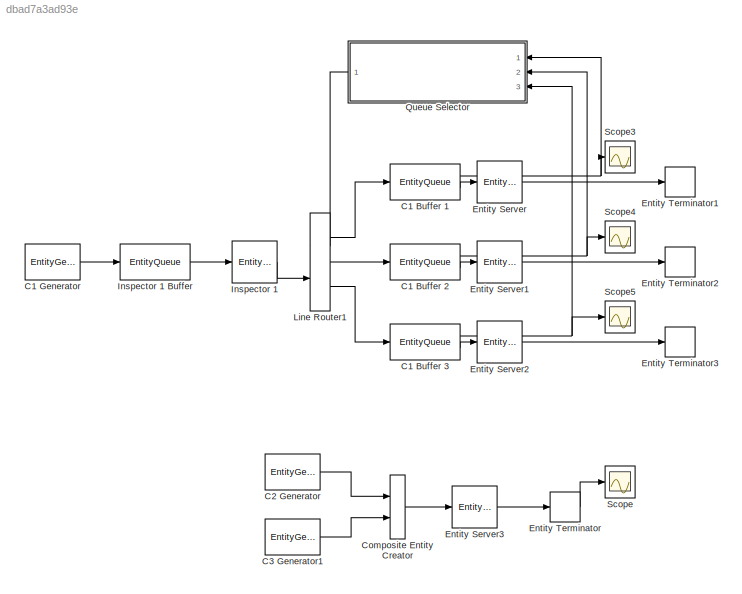
MODEL slx_dbad7a3ad93e
KIND model
CONFIG AbsTol = auto
CONFIG EnableMultiTasking = off
CONFIG FixedStep = auto
CONFIG MaxStep = auto
CONFIG MinStep = auto
CONFIG RelTol = 1e-3
CONFIG SampleTimeConstraint = Unconstrained
CONFIG Solver = VariableStepAuto
CONFIG SolverName = VariableStepAuto
CONFIG StartTime = 0.0
CONFIG StopTime = 11
BLOCK [EntityQueue] C1 Buffer 1
  InputPortMap = u0
  InputPortMessageModes = m
  NumberEntitiesInBlock = on
  OutputPortMap = o1,o5
  OutputPortMessageModes = n,m
  Ports = [1, 2]
BLOCK [EntityQueue] C1 Buffer 2
  InputPortMap = u0
  InputPortMessageModes = m
  NumberEntitiesInBlock = on
  OutputPortMap = o1,o5
  OutputPortMessageModes = n,m
  Ports = [1, 2]
BLOCK [EntityQueue] C1 Buffer 3
  InputPortMap = u0
  InputPortMessageModes = m
  NumberEntitiesInBlock = on
  OutputPortMap = o1,o5
  OutputPortMessageModes = n,m
  Ports = [1, 2]
BLOCK [EntityGenerator] C1 Generator
  AttributeInitialValue = 1|1
  AttributeName = entityType|outputPort
  EntityType = Structured
  EntityTypeName = Entity
  OutputPortMap = o3
  OutputPortMessageModes = m
  Period = 0
  Ports = [0, 1]
BLOCK [EntityGenerator] C2 Generator
  AttributeInitialValue = 2|1
  AttributeName = entityType|outputPort
  EntityType = Structured
  EntityTypeName = Entity
  OutputPortMap = o3
  OutputPortMessageModes = m
  Period = 5
  Ports = [0, 1]
BLOCK [EntityGenerator] C3 Generator1
  AttributeInitialValue = 3|1
  AttributeName = entityType|outputPort
  EntityType = Structured
  EntityTypeName = Entity
  OutputPortMap = o3
  OutputPortMessageModes = m
  Period = 0
  Ports = [0, 1]
BLOCK [CompositeEntityCreator] Composite Entity Creator
  EntityTypeName = Combined
  InputPortMap = u0,u1
  InputPortMessageModes = m,m
  OutputPortMap = o0
  OutputPortMessageModes = m
  Ports = [2, 1]
BLOCK [EntityServer] Entity Server
  Capacity = 1
  InputPortMap = u2
  InputPortMessageModes = m
  OutputPortMap = o9
  OutputPortMessageModes = m
  Ports = [1, 1]
  ServiceTimeValue = 20
BLOCK [EntityServer] Entity Server1
  Capacity = 1
  InputPortMap = u2
  InputPortMessageModes = m
  OutputPortMap = o9
  OutputPortMessageModes = m
  Ports = [1, 1]
  ServiceTimeValue = 20
BLOCK [EntityServer] Entity Server2
  Capacity = 1
  InputPortMap = u2
  InputPortMessageModes = m
  OutputPortMap = o9
  OutputPortMessageModes = m
  Ports = [1, 1]
  ServiceTimeValue = 20
BLOCK [EntityServer] Entity Server3
  Capacity = 1
  InputPortMap = u2
  InputPortMessageModes = m
  OutputPortMap = o9
  OutputPortMessageModes = m
  Ports = [1, 1]
BLOCK [EntityTerminator] Entity Terminator
  InputPortMap = u0
  InputPortMessageModes = m
  NumberEntitiesArrived = on
  OutputPortMap = o0
  Ports = [1, 1]
BLOCK [EntityTerminator] Entity Terminator1
  InputPortMap = u0
  InputPortMessageModes = m
  Ports = [1]
BLOCK [EntityTerminator] Entity Terminator2
  InputPortMap = u0
  InputPortMessageModes = m
  Ports = [1]
BLOCK [EntityTerminator] Entity Terminator3
  InputPortMap = u0
  InputPortMessageModes = m
  Ports = [1]
BLOCK [EntityServer] Inspector 1
  Capacity = 1
  EntryAction = % Entity will select the shortest queue\npickShortestQueue();
  InputPortMap = u2
  InputPortMessageModes = m
  OutputPortMap = o9
  OutputPortMessageModes = m
  Ports = [1, 1]
  ServiceTimeAction = dt = wblrnd(10.725, 1.096);
BLOCK [EntityQueue] Inspector 1 Buffer
  InputPortMap = u0
  InputPortMessageModes = m
  OutputPortMap = o5
  OutputPortMessageModes = m
  Ports = [1, 1]
BLOCK [EntityOutputSwitch] Line Router1
  InputPortMap = u0,u1
  InputPortMessageModes = m,m
  NumberOutputPorts = 3
  OutputPortMap = o0,o1,o2
  OutputPortMessageModes = m,m,m
  Ports = [2, 3]
  SwitchAttributeName = QueuePath
  SwitchingCriterion = From control port
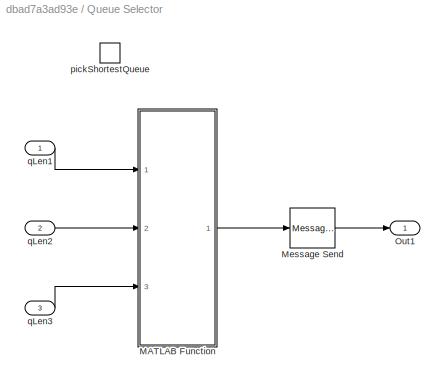
BLOCK [SubSystem] Queue Selector
  Ports = [3, 1, 0, 1]
  RequestExecContextInheritance = off
  TreatAsAtomicUnit = on
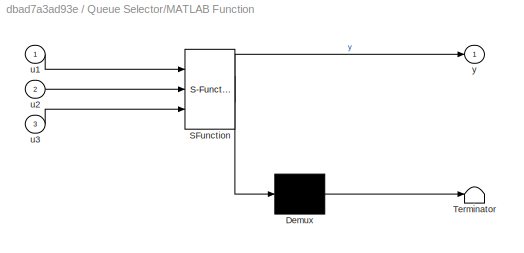
BLOCK [SubSystem] Queue Selector/MATLAB Function
  ErrorFcn = Stateflow.Translate.translate
  PermitHierarchicalResolution = ExplicitOnly
  Ports = [3, 1]
  RequestExecContextInheritance = off
  SFBlockType = MATLAB Function
  TreatAsAtomicUnit = on
BLOCK [Demux] Queue Selector/MATLAB Function/ Demux 
  Outputs = 1
  Ports = [1, 1]
BLOCK [S-Function] Queue Selector/MATLAB Function/ SFunction 
  EnableBusSupport = on
  FunctionName = sf_sfun
  PortCounts = [3 2]
  Ports = [3, 2]
  SFcnIsStateOwnerBlock = off
  SFunctionDeploymentMode = off
  Tag = Stateflow S-Function VnVShortestQueueAndProduct 1
BLOCK [Terminator] Queue Selector/MATLAB Function/ Terminator 
BLOCK [Inport] Queue Selector/MATLAB Function/u1
  IconDisplay = Port number
BLOCK [Inport] Queue Selector/MATLAB Function/u2
  IconDisplay = Port number
  Port = 2
BLOCK [Inport] Queue Selector/MATLAB Function/u3
  IconDisplay = Port number
  Port = 3
BLOCK [Outport] Queue Selector/MATLAB Function/y
  IconDisplay = Port number
BLOCK [MessageSend] Queue Selector/Message Send
  InputPortMap = u1
  OutputPortMessageModes = m
  Ports = [1, 1]
BLOCK [Outport] Queue Selector/Out1
  IconDisplay = Port number
BLOCK [TriggerPort] Queue Selector/pickShortestQueue
  FunctionName = pickShortestQueue
  FunctionVisibility = scoped
  IsSimulinkFunction = on
  Ports = []
  StatesWhenEnabling = held
  TriggerType = function-call
  VariantControl = Variant
BLOCK [Inport] Queue Selector/qLen1
  IconDisplay = Port number
BLOCK [Inport] Queue Selector/qLen2
  IconDisplay = Port number
  Port = 2
BLOCK [Inport] Queue Selector/qLen3
  IconDisplay = Port number
  Port = 3
BLOCK [Scope] Scope
  Floating = off
  NumInputPorts = 1
  Ports = [1]
  ScopeSpecificationString = Simulink.scopes.TimeScopeBlockCfg('CurrentConfiguration', extmgr.ConfigurationSet(extmgr.Configuration('Core','General UI',true),extmgr.Configuration('Core','Source UI',true),extmgr.Configuration('Sources','WiredSimulink',true),extmgr.Configuration('Visuals','Time Domain',true,'SerializedDisplays',{struct('MinYLimReal','0.75','MaxYLimReal','3.25','YLabelReal','','MinYLimMag','0.75','MaxYLimMag','3...<+1311ch>
BLOCK [Scope] Scope3
  Floating = off
  NumInputPorts = 1
  Ports = [1]
  ScopeSpecificationString = Simulink.scopes.TimeScopeBlockCfg('CurrentConfiguration', extmgr.ConfigurationSet(extmgr.Configuration('Core','General UI',true),extmgr.Configuration('Core','Source UI',true),extmgr.Configuration('Sources','WiredSimulink',true,'DataLoggingVariableName','ScopeData3'),extmgr.Configuration('Visuals','Time Domain',true,'SerializedDisplays',{struct('MinYLimReal','-0.375','MaxYLimReal','3.375','YLabelRe...<+1390ch>
BLOCK [Scope] Scope4
  Floating = off
  NumInputPorts = 1
  Ports = [1]
  ScopeSpecificationString = Simulink.scopes.TimeScopeBlockCfg('CurrentConfiguration', extmgr.ConfigurationSet(extmgr.Configuration('Core','General UI',true),extmgr.Configuration('Core','Source UI',true),extmgr.Configuration('Sources','WiredSimulink',true,'DataLoggingVariableName','ScopeData4'),extmgr.Configuration('Visuals','Time Domain',true,'SerializedDisplays',{struct('MinYLimReal','-0.375','MaxYLimReal','3.375','YLabelRe...<+1390ch>
BLOCK [Scope] Scope5
  Floating = off
  NumInputPorts = 1
  Ports = [1]
  ScopeSpecificationString = Simulink.scopes.TimeScopeBlockCfg('CurrentConfiguration', extmgr.ConfigurationSet(extmgr.Configuration('Core','General UI',true),extmgr.Configuration('Core','Source UI',true),extmgr.Configuration('Sources','WiredSimulink',true,'DataLoggingVariableName','ScopeData5'),extmgr.Configuration('Visuals','Time Domain',true,'SerializedDisplays',{struct('MinYLimReal','-0.25','MaxYLimReal','2.25','YLabelReal...<+1384ch>
NET C1 Buffer 1:1 -> Queue Selector:1, Scope3:1
LINE C1 Buffer 1:2 -> Entity Server:1
NET C1 Buffer 2:1 -> Queue Selector:2, Scope4:1
LINE C1 Buffer 2:2 -> Entity Server1:1
NET C1 Buffer 3:1 -> Queue Selector:3, Scope5:1
LINE C1 Buffer 3:2 -> Entity Server2:1
LINE C1 Generator:1 -> Inspector 1 Buffer:1
LINE C2 Generator:1 -> Composite Entity Creator:1
LINE C3 Generator1:1 -> Composite Entity Creator:2
LINE Composite Entity Creator:1 -> Entity Server3:1
LINE Entity Server1:1 -> Entity Terminator2:1
LINE Entity Server2:1 -> Entity Terminator3:1
LINE Entity Server3:1 -> Entity Terminator:1
LINE Entity Server:1 -> Entity Terminator1:1
LINE Entity Terminator:1 -> Scope:1
LINE Inspector 1 Buffer:1 -> Inspector 1:1
LINE Inspector 1:1 -> Line Router1:2
LINE Line Router1:1 -> C1 Buffer 1:1
LINE Line Router1:2 -> C1 Buffer 2:1
LINE Line Router1:3 -> C1 Buffer 3:1
LINE Queue Selector/MATLAB Function:1 -> Queue Selector/Message Send:1
LINE Queue Selector/Message Send:1 -> Queue Selector/Out1:1
LINE Queue Selector/qLen1:1 -> Queue Selector/MATLAB Function:1
LINE Queue Selector/qLen2:1 -> Queue Selector/MATLAB Function:2
LINE Queue Selector/qLen3:1 -> Queue Selector/MATLAB Function:3
LINE Queue Selector:1 -> Line Router1:1
note: NET lines group one-source signal fan-out (src -> all destinations, sorted); 1:1 wires keep LINE
CHART Queue Selector/MATLAB Function states=1 transitions=1
  STATE_LABEL 'eML_blk_kernel()'
  STATE_LABEL 'SCRIPT:\nfunction y = fcn(u1, u2, u3)\n%#codegen\n\n% Identify which input index is the smallest\n[~,y] = min([u1 u2 u3]);'
